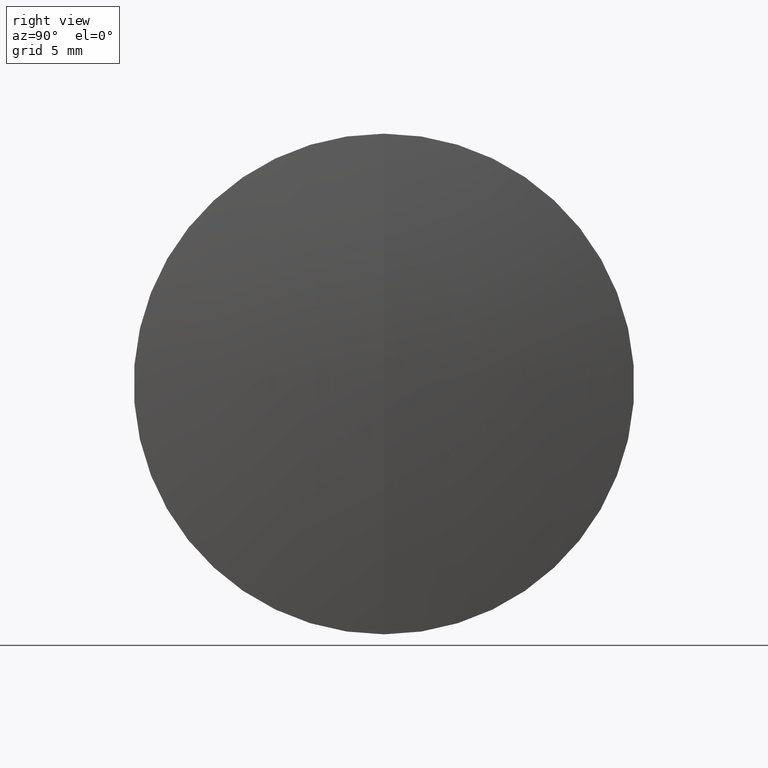
[diagram: clean part render]
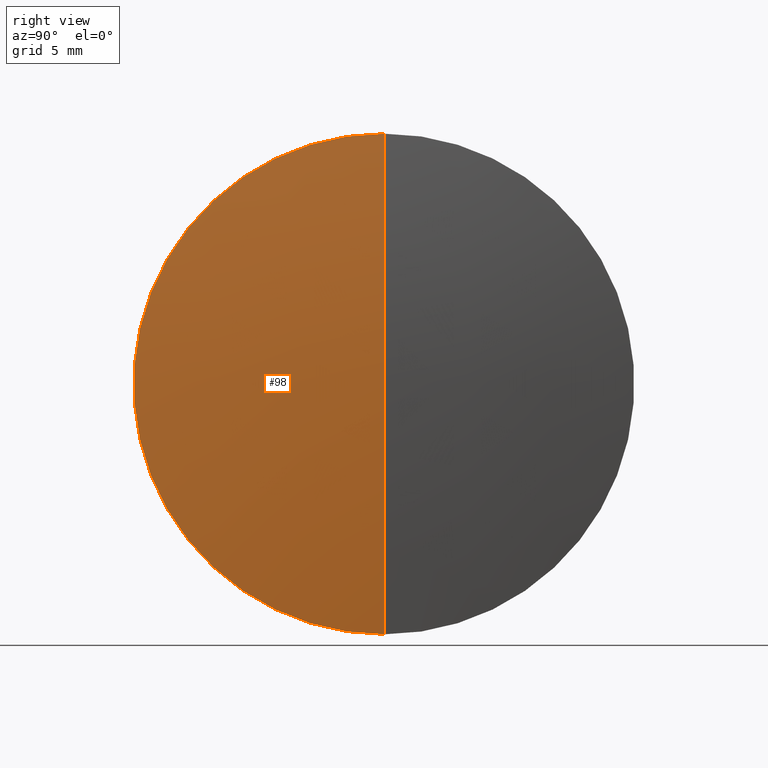
[diagram: same view with one face highlighted and labeled with its STEP entity id]
A machine part, right view. The second image highlights one B-rep face of the part: STEP entity #98.
In plain terms, the highlighted spherical surface has radius 95.5 mm.
Its self-contained STEP definition (entity closure, byte-faithful):
#1 = AXIS2_PLACEMENT_3D ( 'NONE', #251, #217, #246 ) ;
#11 = EDGE_CURVE ( 'NONE', #52, #29, #181, .T. ) ;
#23 = ORIENTED_EDGE ( 'NONE', *, *, #258, .T. ) ;
#24 = CARTESIAN_POINT ( 'NONE',  ( 246.6476286759386200, 0.0000000000000000000, 0.0000000000000000000 ) ) ;
#29 = VERTEX_POINT ( 'NONE', #189 ) ;
#49 = AXIS2_PLACEMENT_3D ( 'NONE', #24, #59, #104 ) ;
#52 = VERTEX_POINT ( 'NONE', #127 ) ;
#59 = DIRECTION ( 'NONE',  ( -1.000000000000000000, -0.0000000000000000000, -0.0000000000000000000 ) ) ;
#98 = ADVANCED_FACE ( 'NONE', ( #227 ), #226, .T. ) ;
#103 = CARTESIAN_POINT ( 'NONE',  ( 151.9958458084194000, 0.0000000000000000000, 0.0000000000000000000 ) ) ;
#104 = DIRECTION ( 'NONE',  ( 0.0000000000000000000, 0.0000000000000000000, 1.000000000000000000 ) ) ;
#107 = ORIENTED_EDGE ( 'NONE', *, *, #11, .F. ) ;
#111 = ORIENTED_EDGE ( 'NONE', *, *, #193, .F. ) ;
#121 = CARTESIAN_POINT ( 'NONE',  ( 151.9958458084194000, 0.0000000000000000000, 0.0000000000000000000 ) ) ;
#127 = CARTESIAN_POINT ( 'NONE',  ( 246.6476286759386200, 1.555301434917137400E-015, -12.69999999999998900 ) ) ;
#156 = DIRECTION ( 'NONE',  ( 0.0000000000000000000, -1.000000000000000000, 0.0000000000000000000 ) ) ;
#162 = AXIS2_PLACEMENT_3D ( 'NONE', #121, #165, #176 ) ;
#165 = DIRECTION ( 'NONE',  ( -0.0000000000000000000, 1.000000000000000000, 1.224646799147353200E-016 ) ) ;
#176 = DIRECTION ( 'NONE',  ( 0.0000000000000000000, -1.224646799147353200E-016, 1.000000000000000000 ) ) ;
#180 = CARTESIAN_POINT ( 'NONE',  ( 247.4958458084194300, 0.0000000000000000000, 5.847688465928612800E-015 ) ) ;
#181 = CIRCLE ( 'NONE', #49, 12.69999999999998900 ) ;
#189 = CARTESIAN_POINT ( 'NONE',  ( 246.6476286759386200, 0.0000000000000000000, 12.69999999999998900 ) ) ;
#193 = EDGE_CURVE ( 'NONE', #317, #52, #260, .T. ) ;
#217 = DIRECTION ( 'NONE',  ( 0.0000000000000000000, 1.000000000000000000, 0.0000000000000000000 ) ) ;
#226 = SPHERICAL_SURFACE ( 'NONE', #1, 95.50000000000001400 ) ;
#227 = FACE_OUTER_BOUND ( 'NONE', #283, .T. ) ;
#246 = DIRECTION ( 'NONE',  ( 0.0000000000000000000, 0.0000000000000000000, 1.000000000000000000 ) ) ;
#251 = CARTESIAN_POINT ( 'NONE',  ( 151.9958458084194000, 0.0000000000000000000, 0.0000000000000000000 ) ) ;
#258 = EDGE_CURVE ( 'NONE', #317, #29, #338, .T. ) ;
#260 = CIRCLE ( 'NONE', #162, 95.50000000000001400 ) ;
#283 = EDGE_LOOP ( 'NONE', ( #111, #23, #107 ) ) ;
#297 = AXIS2_PLACEMENT_3D ( 'NONE', #103, #156, #324 ) ;
#317 = VERTEX_POINT ( 'NONE', #180 ) ;
#324 = DIRECTION ( 'NONE',  ( 0.0000000000000000000, 0.0000000000000000000, -1.000000000000000000 ) ) ;
#338 = CIRCLE ( 'NONE', #297, 95.50000000000001400 ) ;